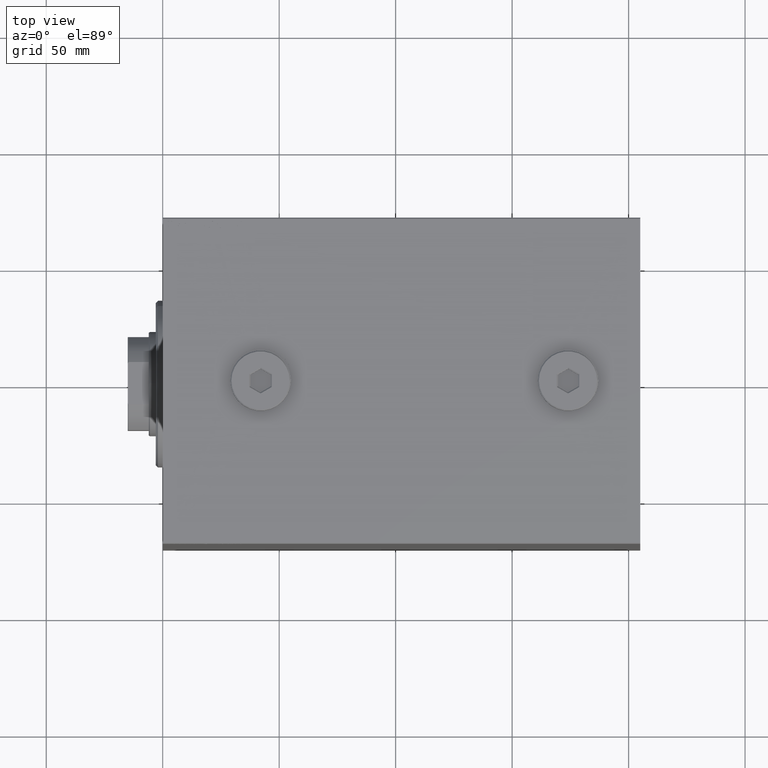
[diagram: clean part render]
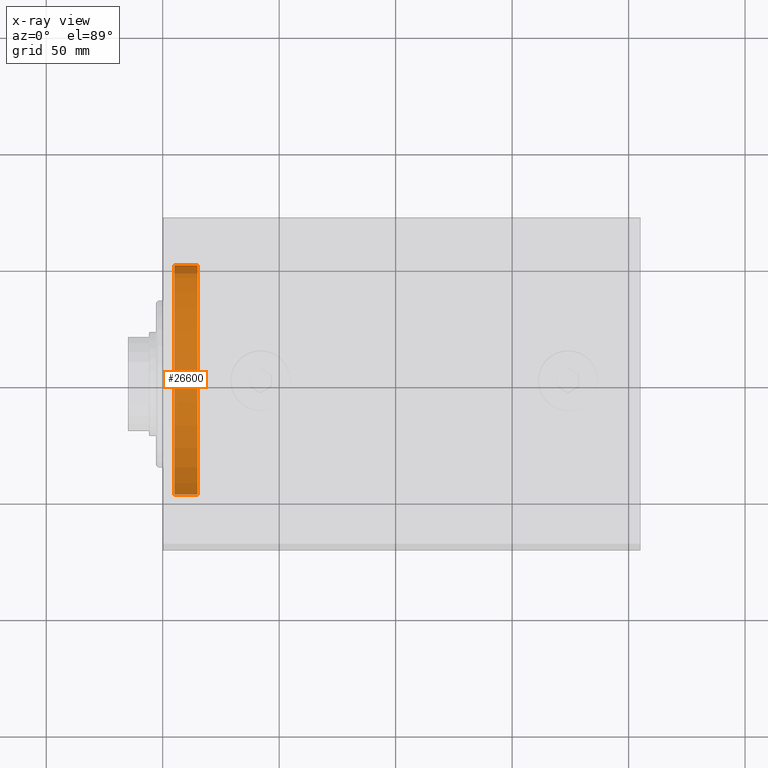
[diagram: x-ray — body ghosted, one internal face saturated and labeled with its STEP entity id]
A machine part, top view, then the same camera in x-ray: the body is ghosted and one INTERNAL B-rep face — a face not visible from any outside direction — is saturated and labeled: STEP entity #26600.
In plain terms, the highlighted cylindrical surface (partial cylindrical patch) has radius 51 mm, axis along (-1, 0, 0).
Its self-contained STEP definition (entity closure, byte-faithful):
#755 = DIRECTION ( 'NONE',  ( 1.000000000000000000, -0.000000000000000000, -0.000000000000000000 ) ) ;
#2649 = DIRECTION ( 'NONE',  ( 1.000000000000000000, -0.000000000000000000, -0.000000000000000000 ) ) ;
#2714 = CYLINDRICAL_SURFACE ( 'NONE', #23873, 51.00000000000000000 ) ;
#3823 = VERTEX_POINT ( 'NONE', #31372 ) ;
#5541 = EDGE_CURVE ( 'NONE', #33530, #36018, #14532, .T. ) ;
#6783 = CARTESIAN_POINT ( 'NONE',  ( -15.00000000000000000, 6.245698675651500444E-15, 51.00000000000000000 ) ) ;
#9381 = DIRECTION ( 'NONE',  ( 0.000000000000000000, 0.000000000000000000, -1.000000000000000000 ) ) ;
#11428 = AXIS2_PLACEMENT_3D ( 'NONE', #22822, #32476, #33378 ) ;
#12747 = CARTESIAN_POINT ( 'NONE',  ( -5.000000000000000000, 0.000000000000000000, 0.000000000000000000 ) ) ;
#13278 = FACE_OUTER_BOUND ( 'NONE', #22132, .T. ) ;
#14532 = LINE ( 'NONE', #21630, #27223 ) ;
#14809 = ORIENTED_EDGE ( 'NONE', *, *, #22358, .F. ) ;
#20369 = CARTESIAN_POINT ( 'NONE',  ( -15.00000000000000000, 0.000000000000000000, 0.000000000000000000 ) ) ;
#21630 = CARTESIAN_POINT ( 'NONE',  ( -15.00000000000000000, 0.000000000000000000, -51.00000000000000000 ) ) ;
#21927 = CARTESIAN_POINT ( 'NONE',  ( -15.00000000000000000, 0.000000000000000000, -51.00000000000000000 ) ) ;
#22132 = EDGE_LOOP ( 'NONE', ( #14809, #28355, #31114, #29742 ) ) ;
#22358 = EDGE_CURVE ( 'NONE', #29906, #33530, #31193, .T. ) ;
#22464 = EDGE_CURVE ( 'NONE', #3823, #36018, #28994, .T. ) ;
#22822 = CARTESIAN_POINT ( 'NONE',  ( -15.00000000000000000, 0.000000000000000000, 0.000000000000000000 ) ) ;
#23873 = AXIS2_PLACEMENT_3D ( 'NONE', #20369, #27256, #9381 ) ;
#26600 = ADVANCED_FACE ( 'NONE', ( #13278 ), #2714, .T. ) ;
#27223 = VECTOR ( 'NONE', #755, 1000.000000000000000 ) ;
#27256 = DIRECTION ( 'NONE',  ( 1.000000000000000000, -0.000000000000000000, -0.000000000000000000 ) ) ;
#28355 = ORIENTED_EDGE ( 'NONE', *, *, #44935, .T. ) ;
#28994 = CIRCLE ( 'NONE', #34854, 51.00000000000000000 ) ;
#29742 = ORIENTED_EDGE ( 'NONE', *, *, #5541, .F. ) ;
#29906 = VERTEX_POINT ( 'NONE', #30402 ) ;
#30389 = DIRECTION ( 'NONE',  ( 0.000000000000000000, 0.000000000000000000, 1.000000000000000000 ) ) ;
#30402 = CARTESIAN_POINT ( 'NONE',  ( -15.00000000000000000, 6.245698675651500444E-15, 51.00000000000000000 ) ) ;
#31114 = ORIENTED_EDGE ( 'NONE', *, *, #22464, .T. ) ;
#31193 = CIRCLE ( 'NONE', #11428, 51.00000000000000000 ) ;
#31372 = CARTESIAN_POINT ( 'NONE',  ( -5.000000000000000000, 6.245698675651500444E-15, 51.00000000000000000 ) ) ;
#32476 = DIRECTION ( 'NONE',  ( -1.000000000000000000, 0.000000000000000000, 0.000000000000000000 ) ) ;
#33378 = DIRECTION ( 'NONE',  ( 0.000000000000000000, 0.000000000000000000, 1.000000000000000000 ) ) ;
#33530 = VERTEX_POINT ( 'NONE', #21927 ) ;
#33754 = VECTOR ( 'NONE', #2649, 1000.000000000000000 ) ;
#34066 = LINE ( 'NONE', #6783, #33754 ) ;
#34854 = AXIS2_PLACEMENT_3D ( 'NONE', #12747, #45037, #30389 ) ;
#36018 = VERTEX_POINT ( 'NONE', #44212 ) ;
#44212 = CARTESIAN_POINT ( 'NONE',  ( -5.000000000000000000, 0.000000000000000000, -51.00000000000000000 ) ) ;
#44935 = EDGE_CURVE ( 'NONE', #29906, #3823, #34066, .T. ) ;
#45037 = DIRECTION ( 'NONE',  ( -1.000000000000000000, 0.000000000000000000, 0.000000000000000000 ) ) ;